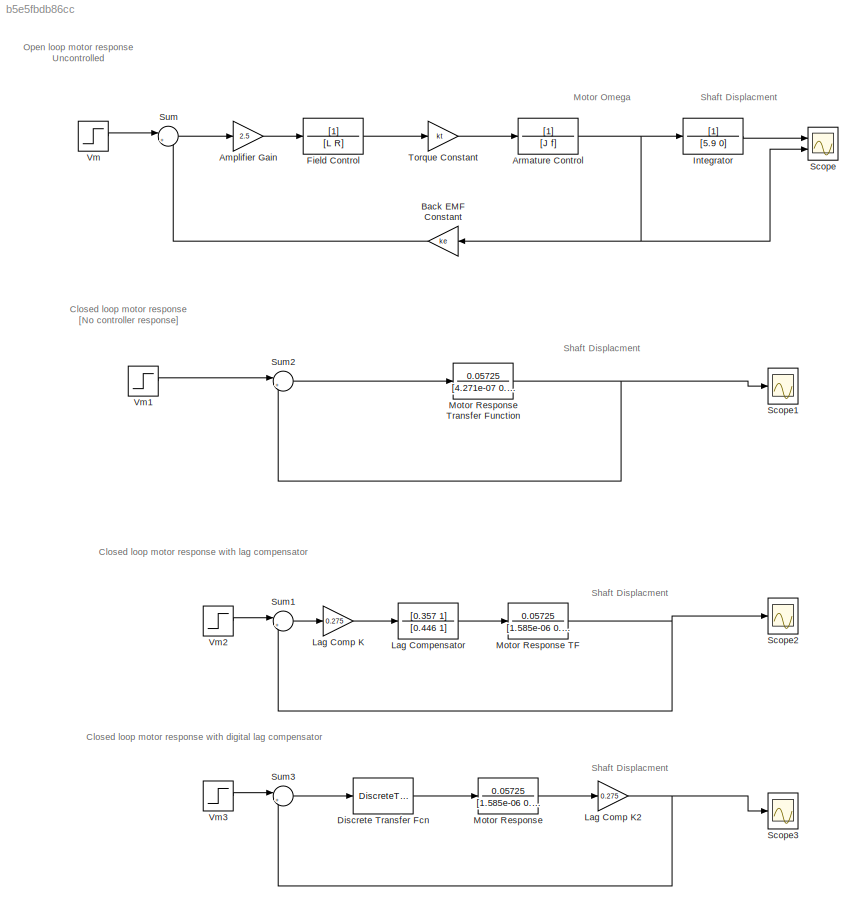
MODEL slx_b5e5fbdb86cc
KIND model
CONFIG AbsTol = auto
CONFIG FixedStep = auto
CONFIG MaxStep = auto
CONFIG MinStep = auto
CONFIG RelTol = 1e-3
CONFIG SampleTimeConstraint = Unconstrained
CONFIG Solver = VariableStepAuto
CONFIG SolverMode = Auto
CONFIG SolverName = VariableStepAuto
CONFIG StartTime = 0.0
CONFIG StopTime = 10
BLOCK [Gain] Amplifier Gain
  Gain = 2.5
  OutDataTypeStr = Inherit: Inherit via internal rule
  ParamDataTypeStr = Inherit: Inherit via internal rule
  SaturateOnIntegerOverflow = off
BLOCK [TransferFcn] Armature Control
  Denominator = [J f]
BLOCK [Gain] Back EMF Constant
  Gain = ke
  OutDataTypeStr = Inherit: Inherit via internal rule
  ParamDataTypeStr = Inherit: Inherit via internal rule
  SaturateOnIntegerOverflow = off
BLOCK [DiscreteTransferFcn] Discrete Transfer Fcn
  Denominator = [1 -0.8029]
  InputPortMap = u0
  Numerator = [0.7899 -0.5927]
  Ports = [1, 1]
  SampleTime = 0.1
BLOCK [TransferFcn] Field Control
  Denominator = [L R]
BLOCK [TransferFcn] Integrator
  Denominator = [5.9 0]
BLOCK [Gain] Lag Comp K
  Gain = 0.275
  OutDataTypeStr = Inherit: Inherit via internal rule
  ParamDataTypeStr = Inherit: Inherit via internal rule
  SaturateOnIntegerOverflow = off
BLOCK [Gain] Lag Comp K2
  Gain = 0.275
  OutDataTypeStr = Inherit: Inherit via internal rule
  ParamDataTypeStr = Inherit: Inherit via internal rule
  SaturateOnIntegerOverflow = off
BLOCK [TransferFcn] Lag Compensator
  Denominator = [0.446 1]
  Numerator = [0.357 1]
BLOCK [TransferFcn] Motor Response
  Denominator = [1.585e-06 0.001709 0.006655 0]
  Numerator = 0.05725
BLOCK [TransferFcn] Motor Response TF
  Denominator = [1.585e-06 0.001709 0.006655 0]
  Numerator = 0.05725
BLOCK [TransferFcn] Motor Response Transfer Function
  Denominator = [4.271e-07 0.00046 0.001128 0]
  Numerator = 0.05725
BLOCK [Scope] Scope
  NumInputPorts = 2
  Ports = [2]
  ScopeSpecificationString = Simulink.scopes.TimeScopeBlockCfg('CurrentConfiguration', extmgr.ConfigurationSet(extmgr.Configuration('Core','General UI',true),extmgr.Configuration('Core','Source UI',true),extmgr.Configuration('Sources','WiredSimulink',true),extmgr.Configuration('Visuals','Time Domain',true,'SerializedDisplays',{struct('MinYLimReal','-4.1886','MaxYLimReal','37.69739','YLabelReal','','MinYLimMag','0.00000','MaxY...<+1423ch>
BLOCK [Scope] Scope1
  Ports = [1]
  ScopeSpecificationString = Simulink.scopes.TimeScopeBlockCfg('CurrentConfiguration', extmgr.ConfigurationSet(extmgr.Configuration('Core','General UI',true),extmgr.Configuration('Core','Source UI',true),extmgr.Configuration('Sources','WiredSimulink',true,'DataLoggingVariableName','ScopeData1'),extmgr.Configuration('Visuals','Time Domain',true,'SerializedDisplays',{struct('MinYLimReal','-0.21476','MaxYLimReal','1.93281','YLab...<+1462ch>
BLOCK [Scope] Scope2
  Ports = [1]
  ScopeSpecificationString = Simulink.scopes.TimeScopeBlockCfg('CurrentConfiguration', extmgr.ConfigurationSet(extmgr.Configuration('Core','General UI',true),extmgr.Configuration('Core','Source UI',true),extmgr.Configuration('Sources','WiredSimulink',true,'DataLoggingVariableName','ScopeData1'),extmgr.Configuration('Visuals','Time Domain',true,'SerializedDisplays',{struct('MinYLimReal','-0.18532','MaxYLimReal','1.66787','YLab...<+1447ch>
BLOCK [Scope] Scope3
  Ports = [1]
  ScopeSpecificationString = Simulink.scopes.TimeScopeBlockCfg('CurrentConfiguration', extmgr.ConfigurationSet(extmgr.Configuration('Core','General UI',true),extmgr.Configuration('Core','Source UI',true),extmgr.Configuration('Sources','WiredSimulink',true,'DataLoggingVariableName','ScopeData2'),extmgr.Configuration('Visuals','Time Domain',true,'SerializedDisplays',{struct('MinYLimReal','-0.21468','MaxYLimReal','1.93211','YLab...<+1466ch>
BLOCK [Sum] Sum
  IconShape = round
  InputSameDT = off
  Inputs = |+-
  OutDataTypeStr = Inherit: Inherit via internal rule
  Ports = [2, 1]
  SaturateOnIntegerOverflow = off
BLOCK [Sum] Sum1
  IconShape = round
  InputSameDT = off
  Inputs = |+-
  OutDataTypeStr = Inherit: Inherit via internal rule
  Ports = [2, 1]
  SaturateOnIntegerOverflow = off
BLOCK [Sum] Sum2
  IconShape = round
  InputSameDT = off
  Inputs = |+-
  OutDataTypeStr = Inherit: Inherit via internal rule
  Ports = [2, 1]
  SaturateOnIntegerOverflow = off
BLOCK [Sum] Sum3
  IconShape = round
  InputSameDT = off
  Inputs = |+-
  OutDataTypeStr = Inherit: Inherit via internal rule
  Ports = [2, 1]
  SaturateOnIntegerOverflow = off
BLOCK [Gain] Torque Constant
  Gain = kt
  OutDataTypeStr = Inherit: Inherit via internal rule
  ParamDataTypeStr = Inherit: Inherit via internal rule
  SaturateOnIntegerOverflow = off
BLOCK [Step] Vm
  SampleTime = 0
  Time = 0
BLOCK [Step] Vm1
  SampleTime = 0
BLOCK [Step] Vm2
  SampleTime = 0
BLOCK [Step] Vm3
  SampleTime = 0.1
ANNOTATION (root): Closed loop motor response [No controller response]
ANNOTATION (root): Closed loop motor response with digital lag compensator
ANNOTATION (root): Closed loop motor response with lag compensator
ANNOTATION (root): Motor Omega
ANNOTATION (root): Open loop motor response Uncontrolled
ANNOTATION (root): Shaft Displacment
LINE Amplifier Gain:1 -> Field Control:1
NET Armature Control:1 -> Back EMF Constant:1, Integrator:1, Scope:2
LINE Back EMF Constant:1 -> Sum:2
LINE Discrete Transfer Fcn:1 -> Motor Response:1
LINE Field Control:1 -> Torque Constant:1
LINE Integrator:1 -> Scope:1
NET Lag Comp K2:1 -> Scope3:1, Sum3:2
LINE Lag Comp K:1 -> Lag Compensator:1
LINE Lag Compensator:1 -> Motor Response TF:1
NET Motor Response TF:1 -> Scope2:1, Sum1:2
NET Motor Response Transfer Function:1 -> Scope1:1, Sum2:2
LINE Motor Response:1 -> Lag Comp K2:1
LINE Sum1:1 -> Lag Comp K:1
LINE Sum2:1 -> Motor Response Transfer Function:1
LINE Sum3:1 -> Discrete Transfer Fcn:1
LINE Sum:1 -> Amplifier Gain:1
LINE Torque Constant:1 -> Armature Control:1
LINE Vm1:1 -> Sum2:1
LINE Vm2:1 -> Sum1:1
LINE Vm3:1 -> Sum3:1
LINE Vm:1 -> Sum:1
note: NET lines group one-source signal fan-out (src -> all destinations, sorted); 1:1 wires keep LINE
